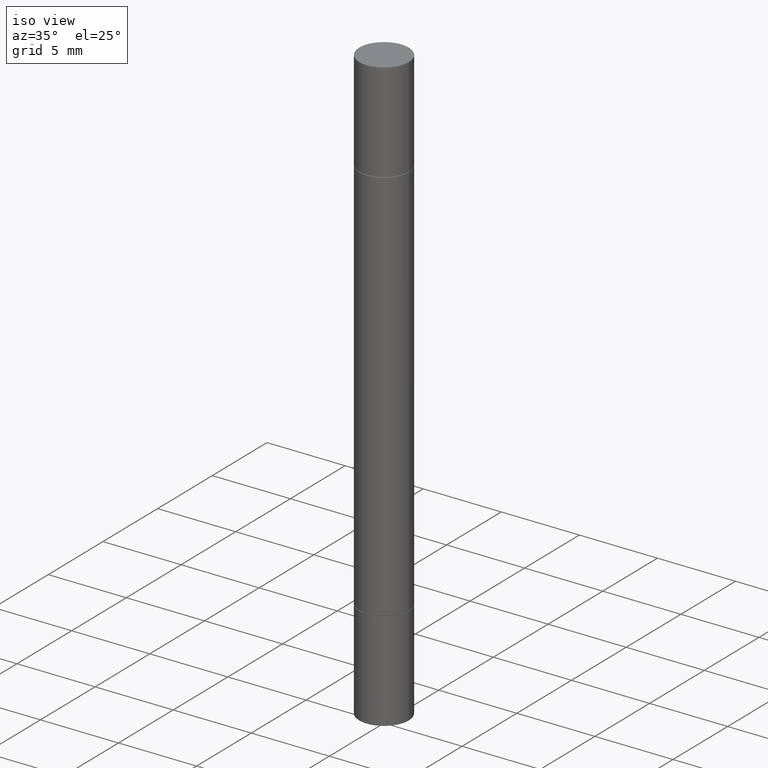
[diagram: clean part render]
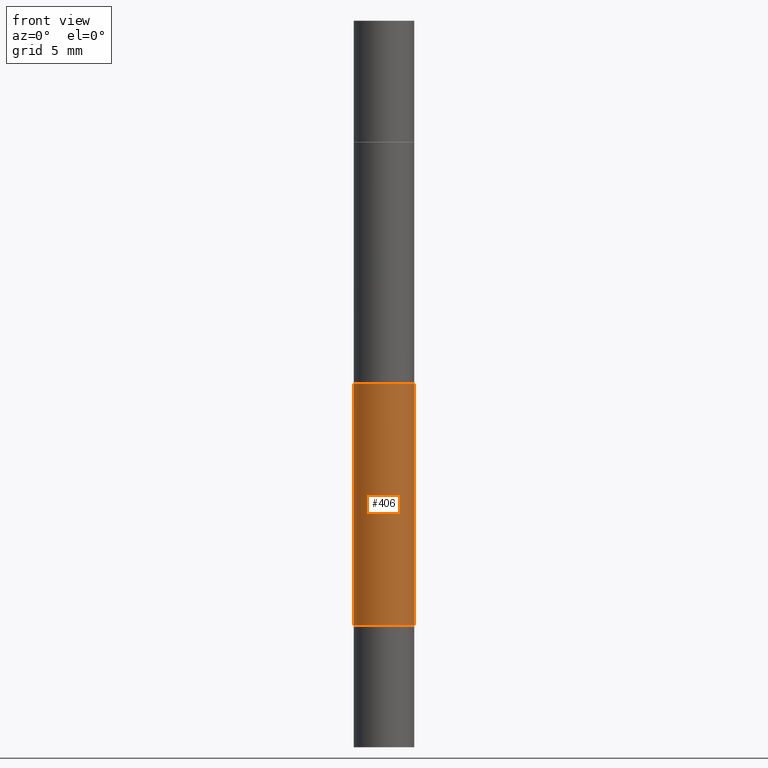
[diagram: tour spotlight — one face highlighted and labeled with its STEP entity id]
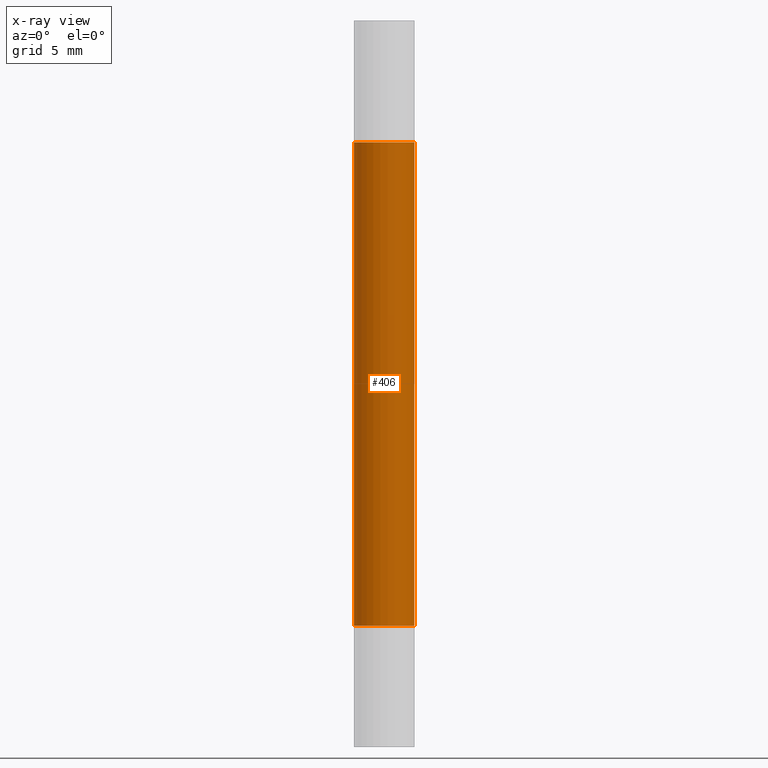
[diagram: x-ray of the same camera — body ghosted, this tour face saturated]
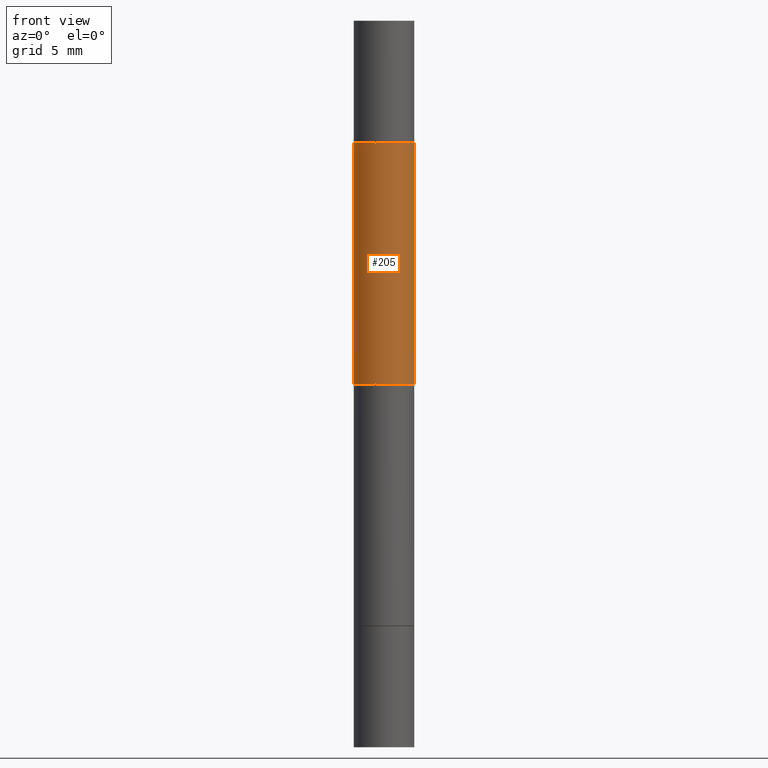
[diagram: tour spotlight — one face highlighted and labeled with its STEP entity id]
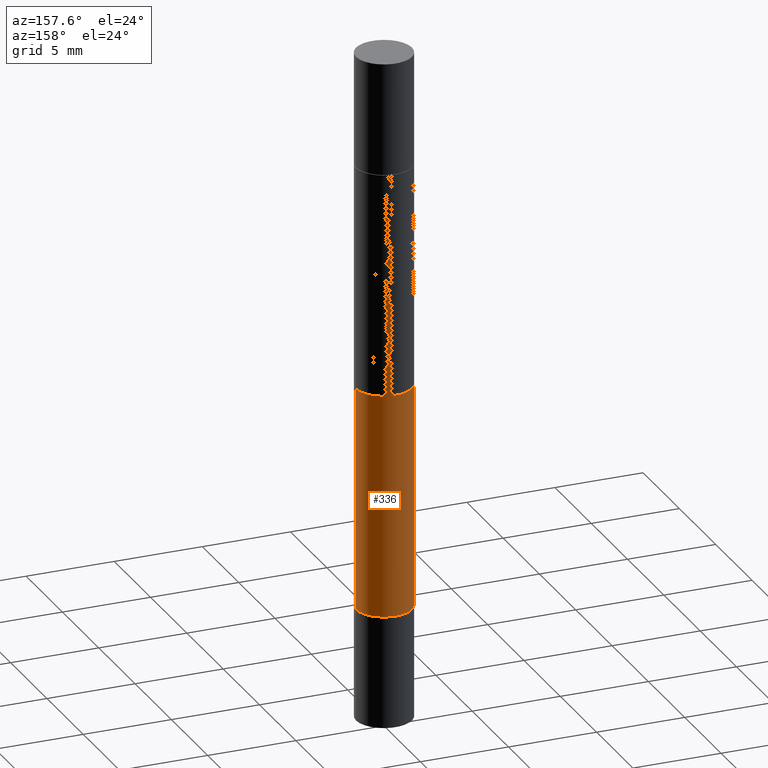
[diagram: tour spotlight — one face highlighted and labeled with its STEP entity id]
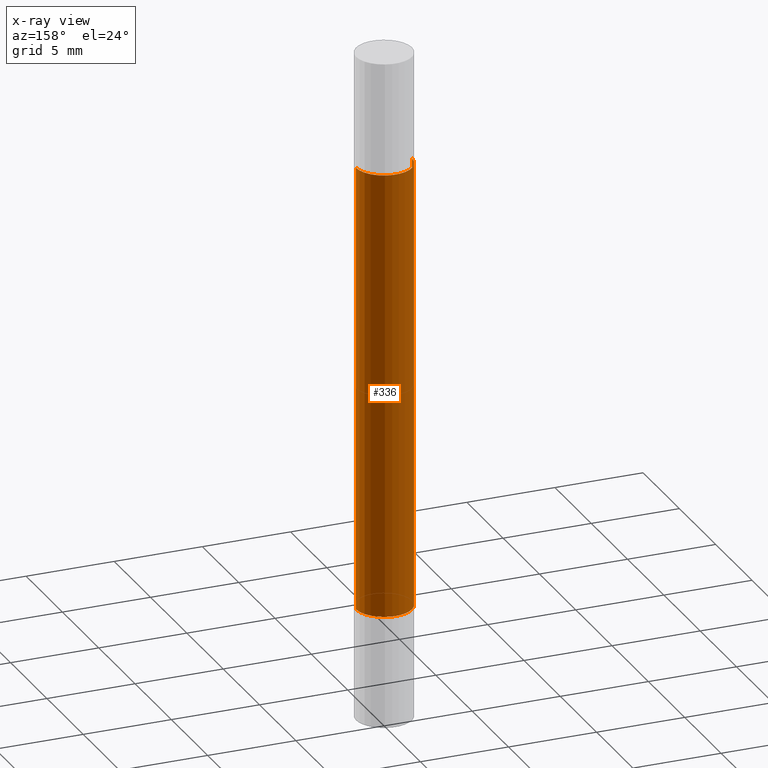
[diagram: x-ray of the same camera — body ghosted, this tour face saturated]
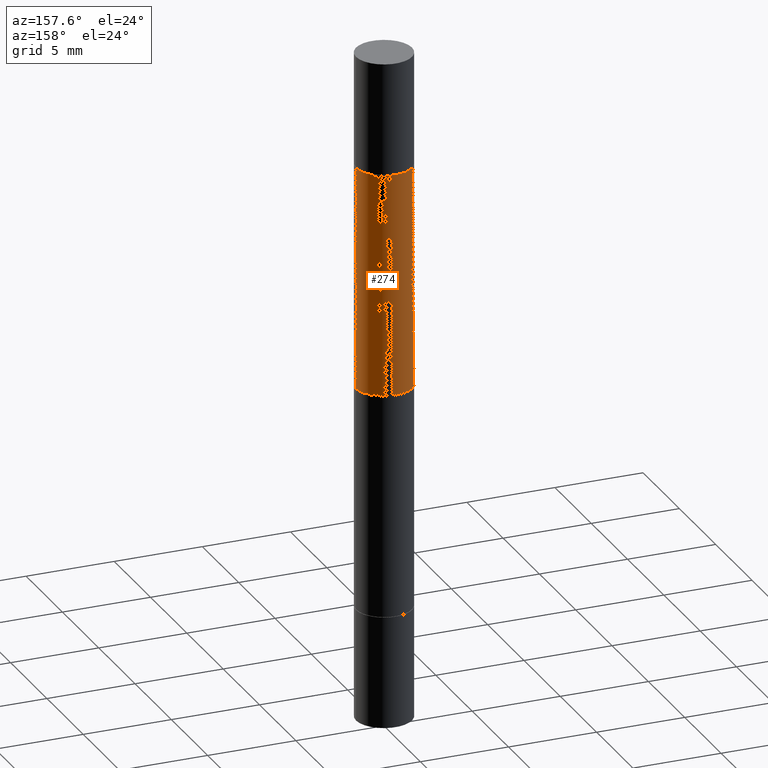
[diagram: tour spotlight — one face highlighted and labeled with its STEP entity id]
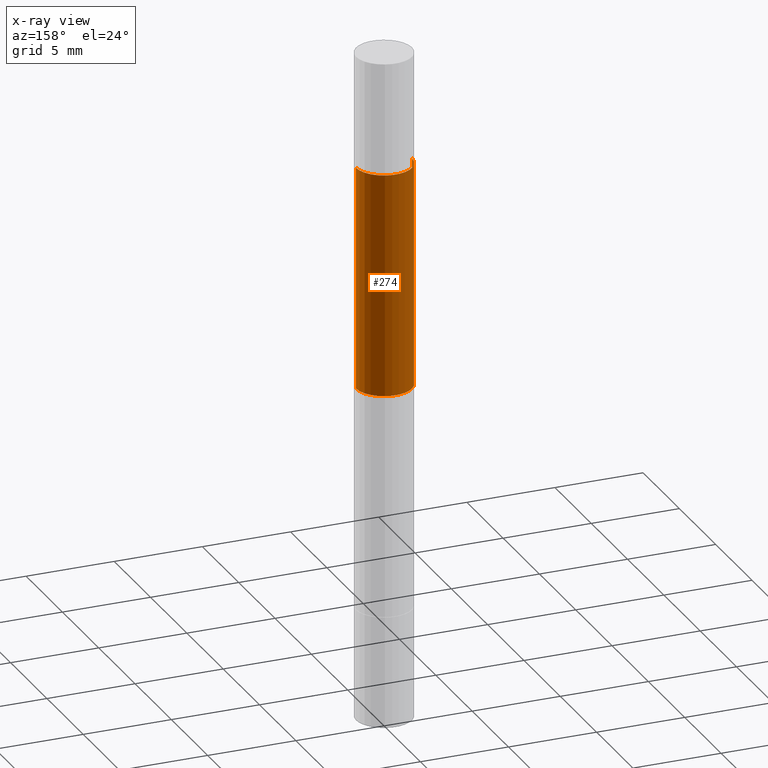
[diagram: x-ray of the same camera — body ghosted, this tour face saturated]
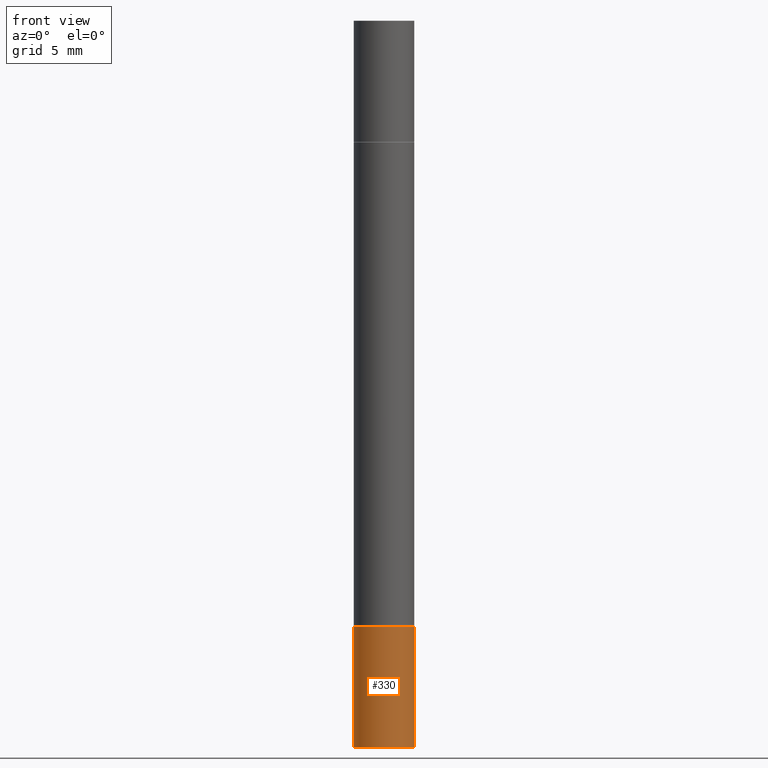
[diagram: tour spotlight — one face highlighted and labeled with its STEP entity id]
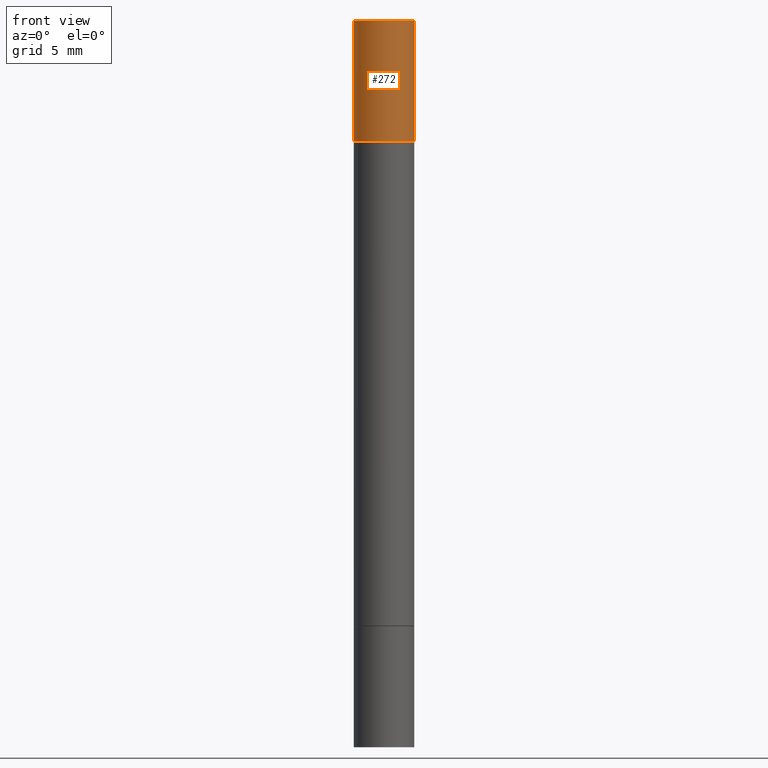
[diagram: tour spotlight — one face highlighted and labeled with its STEP entity id]
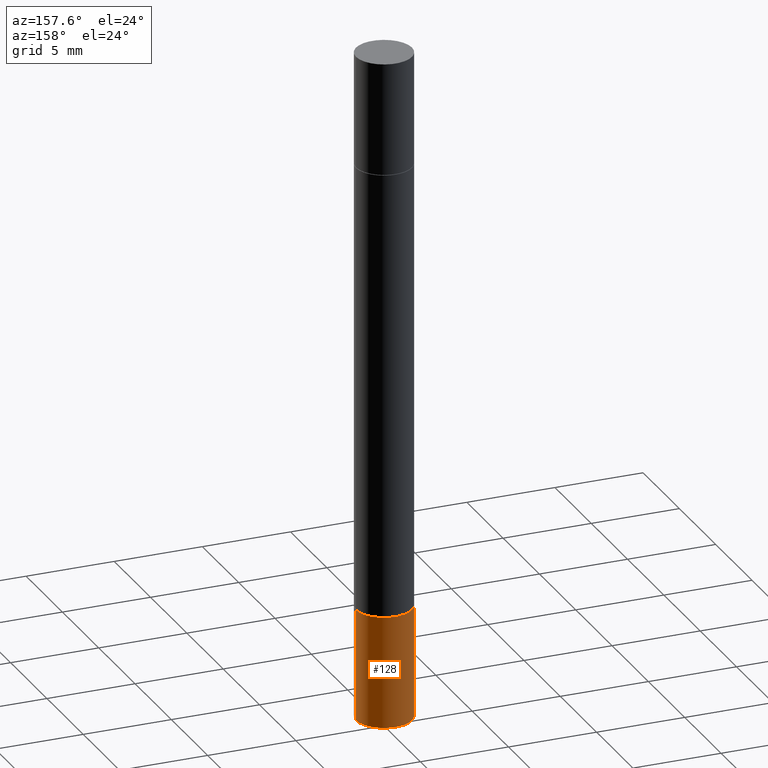
[diagram: tour spotlight — one face highlighted and labeled with its STEP entity id]
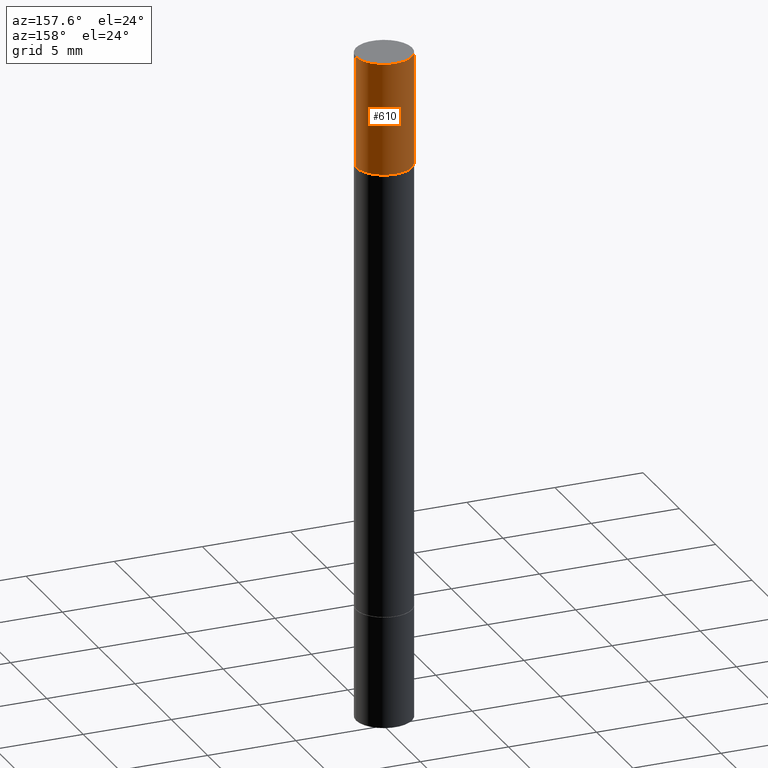
[diagram: tour spotlight — one face highlighted and labeled with its STEP entity id]
A machine part: a face-by-face anatomy tour. The part has 26 B-rep faces; the first image is the clean iso view, then the 8 largest visible faces are spotlighted one at a time (largest first), each with its STEP entity span.

Face 1 — front view, entity #406. An x-ray twin of the same camera follows (body ghosted, this face saturated) — the face is partly hidden behind the body. In plain terms, the highlighted cylindrical surface (edge-blend (fillet) strip) has radius 1.5875 mm, axis along (-0, -0, -1).
Definition (entity closure, byte-faithful):
#28 = VERTEX_POINT ( 'NONE', #626 ) ;
#52 = CARTESIAN_POINT ( 'NONE',  ( 0.06250000000000005551, -1.312093856123426167E-15, -0.2509999999999998899 ) ) ;
#67 = AXIS2_PLACEMENT_3D ( 'NONE', #307, #311, #574 ) ;
#69 = CARTESIAN_POINT ( 'NONE',  ( -0.06250000000000005551, -4.468775639073129860E-16, -0.2509999999999998899 ) ) ;
#70 = EDGE_LOOP ( 'NONE', ( #342, #423, #364, #247 ) ) ;
#105 = CIRCLE ( 'NONE', #67, 0.06250000000000005551 ) ;
#109 = EDGE_CURVE ( 'NONE', #136, #651, #401, .T. ) ;
#136 = VERTEX_POINT ( 'NONE', #52 ) ;
#144 = VECTOR ( 'NONE', #627, 39.37007874015748143 ) ;
#147 = CYLINDRICAL_SURFACE ( 'NONE', #524, 0.06249999999999996531 ) ;
#152 = DIRECTION ( 'NONE',  ( 1.000000000000000000, -6.982962677686264344E-15, 0.000000000000000000 ) ) ;
#184 = FACE_OUTER_BOUND ( 'NONE', #70, .T. ) ;
#219 = CARTESIAN_POINT ( 'NONE',  ( 0.06250000000000005551, -4.797295359570480345E-15, -1.248999999999999888 ) ) ;
#242 = DIRECTION ( 'NONE',  ( 1.000000000000000000, -6.982962677686266711E-15, 0.000000000000000000 ) ) ;
#247 = ORIENTED_EDGE ( 'NONE', *, *, #109, .F. ) ;
#261 = VERTEX_POINT ( 'NONE', #69 ) ;
#267 = AXIS2_PLACEMENT_3D ( 'NONE', #576, #415, #152 ) ;
#292 = CARTESIAN_POINT ( 'NONE',  ( 0.000000000000000000, -5.238278812796173300E-15, -1.499999999999999778 ) ) ;
#307 = CARTESIAN_POINT ( 'NONE',  ( 3.054390538925235704E-29, -4.360860192215088675E-15, -1.248999999999999888 ) ) ;
#311 = DIRECTION ( 'NONE',  ( -2.445468806185136597E-29, 3.491481338843145583E-15, 1.000000000000000000 ) ) ;
#315 = DIRECTION ( 'NONE',  ( -2.445468806185136877E-29, -3.492890411551753071E-15, -1.000000000000000000 ) ) ;
#340 = DIRECTION ( 'NONE',  ( -2.445468806185136597E-29, -3.492890411551752677E-15, -1.000000000000000000 ) ) ;
#342 = ORIENTED_EDGE ( 'NONE', *, *, #607, .F. ) ;
#364 = ORIENTED_EDGE ( 'NONE', *, *, #485, .T. ) ;
#401 = LINE ( 'NONE', #643, #448 ) ;
#406 = ADVANCED_FACE ( 'NONE', ( #184 ), #147, .T. ) ;
#410 = CARTESIAN_POINT ( 'NONE',  ( -0.06249999999999996531, -4.809497687935452578E-15, -1.499999999999999778 ) ) ;
#415 = DIRECTION ( 'NONE',  ( 2.445468806185136597E-29, 3.492890411551752677E-15, 1.000000000000000000 ) ) ;
#423 = ORIENTED_EDGE ( 'NONE', *, *, #602, .T. ) ;
#448 = VECTOR ( 'NONE', #315, 39.37007874015748143 ) ;
#474 = LINE ( 'NONE', #410, #144 ) ;
#485 = EDGE_CURVE ( 'NONE', #28, #651, #105, .T. ) ;
#524 = AXIS2_PLACEMENT_3D ( 'NONE', #292, #340, #242 ) ;
#574 = DIRECTION ( 'NONE',  ( 1.000000000000000000, -6.982962677686264344E-15, 0.000000000000000000 ) ) ;
#576 = CARTESIAN_POINT ( 'NONE',  ( 3.054390538925235704E-29, -8.756586887680336100E-16, -0.2509999999999998899 ) ) ;
#581 = CIRCLE ( 'NONE', #267, 0.06250000000000005551 ) ;
#602 = EDGE_CURVE ( 'NONE', #261, #28, #474, .T. ) ;
#607 = EDGE_CURVE ( 'NONE', #261, #136, #581, .T. ) ;
#626 = CARTESIAN_POINT ( 'NONE',  ( -0.06250000000000005551, -2.189829879271635210E-15, -1.248999999999999888 ) ) ;
#627 = DIRECTION ( 'NONE',  ( -2.445468806185136877E-29, -3.492890411551753071E-15, -1.000000000000000000 ) ) ;
#643 = CARTESIAN_POINT ( 'NONE',  ( 0.06249999999999996531, -5.674713980151564181E-15, -1.499999999999999778 ) ) ;
#651 = VERTEX_POINT ( 'NONE', #219 ) ;

Face 2 — front view, entity #205. In plain terms, the highlighted cylindrical surface (edge-blend (fillet) strip) has radius 1.5875 mm, axis along (-0, -0, -1).
Definition (entity closure, byte-faithful):
#25 = CIRCLE ( 'NONE', #552, 0.06249999999999996531 ) ;
#36 = LINE ( 'NONE', #82, #592 ) ;
#60 = CARTESIAN_POINT ( 'NONE',  ( 0.06250000000000005551, -1.312093856123426167E-15, -0.2509999999999998899 ) ) ;
#72 = EDGE_CURVE ( 'NONE', #578, #264, #25, .T. ) ;
#82 = CARTESIAN_POINT ( 'NONE',  ( -0.06249999999999996531, -4.809497687935452578E-15, -1.499999999999999778 ) ) ;
#117 = EDGE_CURVE ( 'NONE', #583, #561, #541, .T. ) ;
#122 = FACE_OUTER_BOUND ( 'NONE', #447, .T. ) ;
#145 = DIRECTION ( 'NONE',  ( 1.000000000000000000, -6.982962677686264344E-15, 0.000000000000000000 ) ) ;
#146 = EDGE_CURVE ( 'NONE', #561, #578, #517, .T. ) ;
#151 = DIRECTION ( 'NONE',  ( 2.445468806185136597E-29, 3.492890411551752677E-15, 1.000000000000000000 ) ) ;
#172 = CARTESIAN_POINT ( 'NONE',  ( -0.06249999999999996531, -1.318353721589475380E-15, -0.7499999999999998890 ) ) ;
#180 = ORIENTED_EDGE ( 'NONE', *, *, #380, .T. ) ;
#182 = AXIS2_PLACEMENT_3D ( 'NONE', #409, #151, #145 ) ;
#202 = AXIS2_PLACEMENT_3D ( 'NONE', #596, #229, #551 ) ;
#205 = ADVANCED_FACE ( 'NONE', ( #122 ), #593, .T. ) ;
#212 = VECTOR ( 'NONE', #465, 39.37007874015748143 ) ;
#229 = DIRECTION ( 'NONE',  ( -2.445468806185136597E-29, -3.492890411551752677E-15, -1.000000000000000000 ) ) ;
#253 = ORIENTED_EDGE ( 'NONE', *, *, #72, .F. ) ;
#255 = CARTESIAN_POINT ( 'NONE',  ( 0.06249999999999996531, -5.674713980151564181E-15, -1.499999999999999778 ) ) ;
#256 = CARTESIAN_POINT ( 'NONE',  ( -0.06250000000000005551, -4.468775639073129860E-16, -0.2509999999999998899 ) ) ;
#264 = VERTEX_POINT ( 'NONE', #172 ) ;
#270 = ORIENTED_EDGE ( 'NONE', *, *, #146, .F. ) ;
#334 = ORIENTED_EDGE ( 'NONE', *, *, #117, .F. ) ;
#380 = EDGE_CURVE ( 'NONE', #583, #264, #36, .T. ) ;
#408 = DIRECTION ( 'NONE',  ( -2.445468806185136877E-29, -3.492890411551753071E-15, -1.000000000000000000 ) ) ;
#409 = CARTESIAN_POINT ( 'NONE',  ( 3.054390538925235704E-29, -8.756586887680336100E-16, -0.2509999999999998899 ) ) ;
#447 = EDGE_LOOP ( 'NONE', ( #334, #180, #253, #270 ) ) ;
#465 = DIRECTION ( 'NONE',  ( -2.445468806185136877E-29, -3.492890411551753071E-15, -1.000000000000000000 ) ) ;
#517 = LINE ( 'NONE', #255, #212 ) ;
#541 = CIRCLE ( 'NONE', #182, 0.06250000000000005551 ) ;
#551 = DIRECTION ( 'NONE',  ( 1.000000000000000000, -6.982962677686266711E-15, 0.000000000000000000 ) ) ;
#552 = AXIS2_PLACEMENT_3D ( 'NONE', #677, #617, #673 ) ;
#561 = VERTEX_POINT ( 'NONE', #60 ) ;
#578 = VERTEX_POINT ( 'NONE', #637 ) ;
#583 = VERTEX_POINT ( 'NONE', #256 ) ;
#592 = VECTOR ( 'NONE', #408, 39.37007874015748143 ) ;
#593 = CYLINDRICAL_SURFACE ( 'NONE', #202, 0.06249999999999996531 ) ;
#596 = CARTESIAN_POINT ( 'NONE',  ( 0.000000000000000000, -5.238278812796173300E-15, -1.499999999999999778 ) ) ;
#617 = DIRECTION ( 'NONE',  ( -0.000000000000000000, -3.492185875197449130E-15, -1.000000000000000000 ) ) ;
#637 = CARTESIAN_POINT ( 'NONE',  ( 0.06249999999999996531, -2.183570013805587378E-15, -0.7499999999999998890 ) ) ;
#673 = DIRECTION ( 'NONE',  ( 0.000000000000000000, 1.000000000000000000, -4.370956789862823516E-15 ) ) ;
#677 = CARTESIAN_POINT ( 'NONE',  ( 1.834101604638852167E-29, -2.618611004132358694E-15, -0.7499999999999998890 ) ) ;

Face 3 — auxiliary view, entity #336. An x-ray twin of the same camera follows (body ghosted, this face saturated) — the face is partly hidden behind the body. In plain terms, the highlighted cylindrical surface (edge-blend (fillet) strip) has radius 1.5875 mm, axis along (-0, -0, -1).
Definition (entity closure, byte-faithful):
#28 = VERTEX_POINT ( 'NONE', #626 ) ;
#50 = AXIS2_PLACEMENT_3D ( 'NONE', #295, #611, #246 ) ;
#52 = CARTESIAN_POINT ( 'NONE',  ( 0.06250000000000005551, -1.312093856123426167E-15, -0.2509999999999998899 ) ) ;
#69 = CARTESIAN_POINT ( 'NONE',  ( -0.06250000000000005551, -4.468775639073129860E-16, -0.2509999999999998899 ) ) ;
#74 = ORIENTED_EDGE ( 'NONE', *, *, #368, .F. ) ;
#100 = DIRECTION ( 'NONE',  ( -2.445468806185136597E-29, 3.491481338843145583E-15, 1.000000000000000000 ) ) ;
#109 = EDGE_CURVE ( 'NONE', #136, #651, #401, .T. ) ;
#133 = EDGE_CURVE ( 'NONE', #651, #28, #501, .T. ) ;
#136 = VERTEX_POINT ( 'NONE', #52 ) ;
#144 = VECTOR ( 'NONE', #627, 39.37007874015748143 ) ;
#163 = DIRECTION ( 'NONE',  ( 1.000000000000000000, -6.982962677686264344E-15, 0.000000000000000000 ) ) ;
#189 = ORIENTED_EDGE ( 'NONE', *, *, #109, .T. ) ;
#219 = CARTESIAN_POINT ( 'NONE',  ( 0.06250000000000005551, -4.797295359570480345E-15, -1.248999999999999888 ) ) ;
#240 = AXIS2_PLACEMENT_3D ( 'NONE', #299, #100, #163 ) ;
#246 = DIRECTION ( 'NONE',  ( 1.000000000000000000, -6.982962677686264344E-15, 0.000000000000000000 ) ) ;
#261 = VERTEX_POINT ( 'NONE', #69 ) ;
#284 = CARTESIAN_POINT ( 'NONE',  ( 0.000000000000000000, -5.238278812796173300E-15, -1.499999999999999778 ) ) ;
#295 = CARTESIAN_POINT ( 'NONE',  ( 3.054390538925235704E-29, -8.756586887680336100E-16, -0.2509999999999998899 ) ) ;
#299 = CARTESIAN_POINT ( 'NONE',  ( 3.054390538925235704E-29, -4.360860192215088675E-15, -1.248999999999999888 ) ) ;
#315 = DIRECTION ( 'NONE',  ( -2.445468806185136877E-29, -3.492890411551753071E-15, -1.000000000000000000 ) ) ;
#316 = ORIENTED_EDGE ( 'NONE', *, *, #602, .F. ) ;
#322 = CIRCLE ( 'NONE', #50, 0.06250000000000005551 ) ;
#323 = AXIS2_PLACEMENT_3D ( 'NONE', #284, #451, #445 ) ;
#336 = ADVANCED_FACE ( 'NONE', ( #675 ), #353, .T. ) ;
#353 = CYLINDRICAL_SURFACE ( 'NONE', #323, 0.06249999999999996531 ) ;
#361 = EDGE_LOOP ( 'NONE', ( #316, #74, #189, #648 ) ) ;
#368 = EDGE_CURVE ( 'NONE', #136, #261, #322, .T. ) ;
#401 = LINE ( 'NONE', #643, #448 ) ;
#410 = CARTESIAN_POINT ( 'NONE',  ( -0.06249999999999996531, -4.809497687935452578E-15, -1.499999999999999778 ) ) ;
#445 = DIRECTION ( 'NONE',  ( 1.000000000000000000, -6.982962677686266711E-15, 0.000000000000000000 ) ) ;
#448 = VECTOR ( 'NONE', #315, 39.37007874015748143 ) ;
#451 = DIRECTION ( 'NONE',  ( -2.445468806185136597E-29, -3.492890411551752677E-15, -1.000000000000000000 ) ) ;
#474 = LINE ( 'NONE', #410, #144 ) ;
#501 = CIRCLE ( 'NONE', #240, 0.06250000000000005551 ) ;
#602 = EDGE_CURVE ( 'NONE', #261, #28, #474, .T. ) ;
#611 = DIRECTION ( 'NONE',  ( 2.445468806185136597E-29, 3.492890411551752677E-15, 1.000000000000000000 ) ) ;
#626 = CARTESIAN_POINT ( 'NONE',  ( -0.06250000000000005551, -2.189829879271635210E-15, -1.248999999999999888 ) ) ;
#627 = DIRECTION ( 'NONE',  ( -2.445468806185136877E-29, -3.492890411551753071E-15, -1.000000000000000000 ) ) ;
#643 = CARTESIAN_POINT ( 'NONE',  ( 0.06249999999999996531, -5.674713980151564181E-15, -1.499999999999999778 ) ) ;
#648 = ORIENTED_EDGE ( 'NONE', *, *, #133, .T. ) ;
#651 = VERTEX_POINT ( 'NONE', #219 ) ;
#675 = FACE_OUTER_BOUND ( 'NONE', #361, .T. ) ;

Face 4 — auxiliary view, entity #274. An x-ray twin of the same camera follows (body ghosted, this face saturated) — the face is partly hidden behind the body. In plain terms, the highlighted cylindrical surface (edge-blend (fillet) strip) has radius 1.5875 mm, axis along (-0, -0, -1).
Definition (entity closure, byte-faithful):
#3 = CARTESIAN_POINT ( 'NONE',  ( 3.054390538925235704E-29, -8.756586887680336100E-16, -0.2509999999999998899 ) ) ;
#30 = DIRECTION ( 'NONE',  ( -2.445468806185136597E-29, -3.492890411551752677E-15, -1.000000000000000000 ) ) ;
#36 = LINE ( 'NONE', #82, #592 ) ;
#60 = CARTESIAN_POINT ( 'NONE',  ( 0.06250000000000005551, -1.312093856123426167E-15, -0.2509999999999998899 ) ) ;
#80 = CYLINDRICAL_SURFACE ( 'NONE', #120, 0.06249999999999996531 ) ;
#82 = CARTESIAN_POINT ( 'NONE',  ( -0.06249999999999996531, -4.809497687935452578E-15, -1.499999999999999778 ) ) ;
#111 = ORIENTED_EDGE ( 'NONE', *, *, #146, .T. ) ;
#120 = AXIS2_PLACEMENT_3D ( 'NONE', #494, #30, #546 ) ;
#146 = EDGE_CURVE ( 'NONE', #561, #578, #517, .T. ) ;
#168 = EDGE_CURVE ( 'NONE', #561, #583, #391, .T. ) ;
#172 = CARTESIAN_POINT ( 'NONE',  ( -0.06249999999999996531, -1.318353721589475380E-15, -0.7499999999999998890 ) ) ;
#177 = ORIENTED_EDGE ( 'NONE', *, *, #380, .F. ) ;
#200 = DIRECTION ( 'NONE',  ( 2.445468806185136597E-29, 3.492890411551752677E-15, 1.000000000000000000 ) ) ;
#212 = VECTOR ( 'NONE', #465, 39.37007874015748143 ) ;
#218 = ORIENTED_EDGE ( 'NONE', *, *, #328, .F. ) ;
#222 = FACE_OUTER_BOUND ( 'NONE', #670, .T. ) ;
#255 = CARTESIAN_POINT ( 'NONE',  ( 0.06249999999999996531, -5.674713980151564181E-15, -1.499999999999999778 ) ) ;
#256 = CARTESIAN_POINT ( 'NONE',  ( -0.06250000000000005551, -4.468775639073129860E-16, -0.2509999999999998899 ) ) ;
#264 = VERTEX_POINT ( 'NONE', #172 ) ;
#274 = ADVANCED_FACE ( 'NONE', ( #222 ), #80, .T. ) ;
#291 = AXIS2_PLACEMENT_3D ( 'NONE', #615, #458, #564 ) ;
#328 = EDGE_CURVE ( 'NONE', #264, #578, #618, .T. ) ;
#380 = EDGE_CURVE ( 'NONE', #583, #264, #36, .T. ) ;
#391 = CIRCLE ( 'NONE', #571, 0.06250000000000005551 ) ;
#408 = DIRECTION ( 'NONE',  ( -2.445468806185136877E-29, -3.492890411551753071E-15, -1.000000000000000000 ) ) ;
#412 = DIRECTION ( 'NONE',  ( 1.000000000000000000, -6.982962677686264344E-15, 0.000000000000000000 ) ) ;
#436 = ORIENTED_EDGE ( 'NONE', *, *, #168, .F. ) ;
#458 = DIRECTION ( 'NONE',  ( -0.000000000000000000, -3.492185875197449130E-15, -1.000000000000000000 ) ) ;
#465 = DIRECTION ( 'NONE',  ( -2.445468806185136877E-29, -3.492890411551753071E-15, -1.000000000000000000 ) ) ;
#494 = CARTESIAN_POINT ( 'NONE',  ( 0.000000000000000000, -5.238278812796173300E-15, -1.499999999999999778 ) ) ;
#517 = LINE ( 'NONE', #255, #212 ) ;
#546 = DIRECTION ( 'NONE',  ( 1.000000000000000000, -6.982962677686266711E-15, 0.000000000000000000 ) ) ;
#561 = VERTEX_POINT ( 'NONE', #60 ) ;
#564 = DIRECTION ( 'NONE',  ( 0.000000000000000000, 1.000000000000000000, -4.370956789862823516E-15 ) ) ;
#571 = AXIS2_PLACEMENT_3D ( 'NONE', #3, #200, #412 ) ;
#578 = VERTEX_POINT ( 'NONE', #637 ) ;
#583 = VERTEX_POINT ( 'NONE', #256 ) ;
#592 = VECTOR ( 'NONE', #408, 39.37007874015748143 ) ;
#615 = CARTESIAN_POINT ( 'NONE',  ( 1.834101604638852167E-29, -2.618611004132358694E-15, -0.7499999999999998890 ) ) ;
#618 = CIRCLE ( 'NONE', #291, 0.06249999999999996531 ) ;
#637 = CARTESIAN_POINT ( 'NONE',  ( 0.06249999999999996531, -2.183570013805587378E-15, -0.7499999999999998890 ) ) ;
#670 = EDGE_LOOP ( 'NONE', ( #177, #436, #111, #218 ) ) ;

Face 5 — front view, entity #330. In plain terms, the highlighted cylindrical surface (edge-blend (fillet) strip) has radius 1.5875 mm, axis along (-0, 0, 1).
Definition (entity closure, byte-faithful):
#21 = CARTESIAN_POINT ( 'NONE',  ( 3.668203209277704895E-29, -5.237222008264718177E-15, -1.500000000000000222 ) ) ;
#29 = CARTESIAN_POINT ( 'NONE',  ( -0.06250000000000001388, 4.440892098500627148E-16, -3.074334431409317165E-30 ) ) ;
#31 = ORIENTED_EDGE ( 'NONE', *, *, #228, .T. ) ;
#33 = CARTESIAN_POINT ( 'NONE',  ( 0.000000000000000000, 0.000000000000000000, 0.000000000000000000 ) ) ;
#58 = CARTESIAN_POINT ( 'NONE',  ( 0.06250000000000001388, -4.364351673553918173E-16, 3.047610484872460571E-30 ) ) ;
#89 = AXIS2_PLACEMENT_3D ( 'NONE', #21, #542, #127 ) ;
#103 = LINE ( 'NONE', #58, #449 ) ;
#108 = DIRECTION ( 'NONE',  ( -2.445468806185136877E-29, 3.491481338843145188E-15, 1.000000000000000000 ) ) ;
#115 = DIRECTION ( 'NONE',  ( -2.445468806185136877E-29, 3.491481338843145188E-15, 1.000000000000000000 ) ) ;
#119 = CIRCLE ( 'NONE', #379, 0.06250000000000001388 ) ;
#123 = ORIENTED_EDGE ( 'NONE', *, *, #206, .F. ) ;
#127 = DIRECTION ( 'NONE',  ( 1.000000000000000000, -6.982962677686261189E-15, 0.000000000000000000 ) ) ;
#132 = CARTESIAN_POINT ( 'NONE',  ( 3.056836007731421306E-29, -4.364351673553932471E-15, -1.250000000000000000 ) ) ;
#164 = VERTEX_POINT ( 'NONE', #263 ) ;
#201 = CARTESIAN_POINT ( 'NONE',  ( 0.06250000000000001388, -4.800786840909324141E-15, -1.250000000000000000 ) ) ;
#206 = EDGE_CURVE ( 'NONE', #398, #534, #119, .T. ) ;
#220 = DIRECTION ( 'NONE',  ( -2.445468806185136597E-29, 3.491481338843145583E-15, 1.000000000000000000 ) ) ;
#228 = EDGE_CURVE ( 'NONE', #164, #502, #580, .T. ) ;
#263 = CARTESIAN_POINT ( 'NONE',  ( -0.06250000000000001388, -4.356697631059263102E-15, -1.500000000000000222 ) ) ;
#266 = EDGE_LOOP ( 'NONE', ( #565, #31, #496, #123 ) ) ;
#317 = LINE ( 'NONE', #29, #525 ) ;
#329 = DIRECTION ( 'NONE',  ( 1.000000000000000000, -6.982962677686269077E-15, 0.000000000000000000 ) ) ;
#330 = ADVANCED_FACE ( 'NONE', ( #405 ), #560, .T. ) ;
#350 = DIRECTION ( 'NONE',  ( -2.445468806185136597E-29, 3.491481338843145583E-15, 1.000000000000000000 ) ) ;
#362 = CARTESIAN_POINT ( 'NONE',  ( 0.06250000000000001388, -5.673657175620109846E-15, -1.500000000000000222 ) ) ;
#379 = AXIS2_PLACEMENT_3D ( 'NONE', #132, #220, #329 ) ;
#398 = VERTEX_POINT ( 'NONE', #509 ) ;
#405 = FACE_OUTER_BOUND ( 'NONE', #266, .T. ) ;
#449 = VECTOR ( 'NONE', #108, 39.37007874015748143 ) ;
#496 = ORIENTED_EDGE ( 'NONE', *, *, #567, .T. ) ;
#500 = DIRECTION ( 'NONE',  ( 1.000000000000000000, -6.982962677686267499E-15, 4.876176775795935793E-29 ) ) ;
#502 = VERTEX_POINT ( 'NONE', #362 ) ;
#509 = CARTESIAN_POINT ( 'NONE',  ( -0.06250000000000001388, -4.356697631059263102E-15, -1.250000000000000000 ) ) ;
#525 = VECTOR ( 'NONE', #115, 39.37007874015748143 ) ;
#534 = VERTEX_POINT ( 'NONE', #201 ) ;
#542 = DIRECTION ( 'NONE',  ( -2.445468806185136597E-29, 3.491481338843145583E-15, 1.000000000000000000 ) ) ;
#560 = CYLINDRICAL_SURFACE ( 'NONE', #632, 0.06250000000000001388 ) ;
#565 = ORIENTED_EDGE ( 'NONE', *, *, #624, .F. ) ;
#567 = EDGE_CURVE ( 'NONE', #502, #534, #103, .T. ) ;
#580 = CIRCLE ( 'NONE', #89, 0.06250000000000001388 ) ;
#624 = EDGE_CURVE ( 'NONE', #164, #398, #317, .T. ) ;
#632 = AXIS2_PLACEMENT_3D ( 'NONE', #33, #350, #500 ) ;

Face 6 — front view, entity #272. In plain terms, the highlighted cylindrical surface (edge-blend (fillet) strip) has radius 1.5875 mm, axis along (-0, -0, -1).
Definition (entity closure, byte-faithful):
#11 = DIRECTION ( 'NONE',  ( 2.445468806185136597E-29, 3.492890411551752677E-15, 1.000000000000000000 ) ) ;
#14 = CARTESIAN_POINT ( 'NONE',  ( -0.06250000000000001388, -6.773372051792008208E-18, 2.731847993664278996E-16 ) ) ;
#26 = AXIS2_PLACEMENT_3D ( 'NONE', #257, #11, #102 ) ;
#37 = CIRCLE ( 'NONE', #655, 0.06250000000000001388 ) ;
#43 = ORIENTED_EDGE ( 'NONE', *, *, #483, .F. ) ;
#49 = ORIENTED_EDGE ( 'NONE', *, *, #614, .F. ) ;
#57 = VECTOR ( 'NONE', #174, 39.37007874015748143 ) ;
#101 = AXIS2_PLACEMENT_3D ( 'NONE', #179, #650, #599 ) ;
#102 = DIRECTION ( 'NONE',  ( 1.000000000000000000, -6.982962677686267499E-15, 0.000000000000000000 ) ) ;
#138 = CARTESIAN_POINT ( 'NONE',  ( 3.056836007731421306E-29, -8.721657983564820597E-16, -0.2499999999999998057 ) ) ;
#166 = LINE ( 'NONE', #556, #195 ) ;
#173 = VERTEX_POINT ( 'NONE', #510 ) ;
#174 = DIRECTION ( 'NONE',  ( -2.445468806185136877E-29, -3.492890411551753071E-15, -1.000000000000000000 ) ) ;
#179 = CARTESIAN_POINT ( 'NONE',  ( 0.000000000000000000, -5.238278812796173300E-15, -1.499999999999999778 ) ) ;
#195 = VECTOR ( 'NONE', #265, 39.37007874015748143 ) ;
#225 = CIRCLE ( 'NONE', #26, 0.06250000000000001388 ) ;
#232 = CARTESIAN_POINT ( 'NONE',  ( 0.06250000000000001388, -5.674713980151564181E-15, -1.499999999999999778 ) ) ;
#257 = CARTESIAN_POINT ( 'NONE',  ( 3.668203209277704895E-29, 1.056804531456312920E-18, 2.731847993664263218E-16 ) ) ;
#265 = DIRECTION ( 'NONE',  ( -2.445468806185136877E-29, -3.492890411551753071E-15, -1.000000000000000000 ) ) ;
#272 = ADVANCED_FACE ( 'NONE', ( #338 ), #482, .T. ) ;
#286 = EDGE_CURVE ( 'NONE', #293, #173, #166, .T. ) ;
#293 = VERTEX_POINT ( 'NONE', #14 ) ;
#297 = DIRECTION ( 'NONE',  ( 1.000000000000000000, -6.982962677686269077E-15, 0.000000000000000000 ) ) ;
#338 = FACE_OUTER_BOUND ( 'NONE', #605, .T. ) ;
#357 = CARTESIAN_POINT ( 'NONE',  ( 0.06250000000000001388, -1.308600965711874025E-15, -0.2499999999999998057 ) ) ;
#393 = DIRECTION ( 'NONE',  ( 2.445468806185136597E-29, 3.492890411551752677E-15, 1.000000000000000000 ) ) ;
#411 = EDGE_CURVE ( 'NONE', #173, #488, #37, .T. ) ;
#426 = LINE ( 'NONE', #232, #57 ) ;
#482 = CYLINDRICAL_SURFACE ( 'NONE', #101, 0.06250000000000001388 ) ;
#483 = EDGE_CURVE ( 'NONE', #293, #547, #225, .T. ) ;
#488 = VERTEX_POINT ( 'NONE', #357 ) ;
#510 = CARTESIAN_POINT ( 'NONE',  ( -0.06250000000000001388, -6.773372051792008208E-18, -0.2499999999999998057 ) ) ;
#527 = ORIENTED_EDGE ( 'NONE', *, *, #286, .T. ) ;
#547 = VERTEX_POINT ( 'NONE', #638 ) ;
#556 = CARTESIAN_POINT ( 'NONE',  ( -0.06250000000000001388, -4.809497687935452578E-15, -1.499999999999999778 ) ) ;
#599 = DIRECTION ( 'NONE',  ( 1.000000000000000000, -6.982962677686261189E-15, 0.000000000000000000 ) ) ;
#600 = ORIENTED_EDGE ( 'NONE', *, *, #411, .T. ) ;
#605 = EDGE_LOOP ( 'NONE', ( #43, #527, #600, #49 ) ) ;
#614 = EDGE_CURVE ( 'NONE', #547, #488, #426, .T. ) ;
#638 = CARTESIAN_POINT ( 'NONE',  ( 0.06250000000000001388, -4.353783628239354613E-16, 2.731847993664263218E-16 ) ) ;
#650 = DIRECTION ( 'NONE',  ( -2.445468806185136597E-29, -3.492890411551752677E-15, -1.000000000000000000 ) ) ;
#655 = AXIS2_PLACEMENT_3D ( 'NONE', #138, #393, #297 ) ;

Face 7 — auxiliary view, entity #128. In plain terms, the highlighted cylindrical surface (edge-blend (fillet) strip) has radius 1.5875 mm, axis along (-0, 0, 1).
Definition (entity closure, byte-faithful):
#29 = CARTESIAN_POINT ( 'NONE',  ( -0.06250000000000001388, 4.440892098500627148E-16, -3.074334431409317165E-30 ) ) ;
#47 = DIRECTION ( 'NONE',  ( 1.000000000000000000, -6.982962677686269077E-15, 0.000000000000000000 ) ) ;
#58 = CARTESIAN_POINT ( 'NONE',  ( 0.06250000000000001388, -4.364351673553918173E-16, 3.047610484872460571E-30 ) ) ;
#94 = DIRECTION ( 'NONE',  ( 1.000000000000000000, -6.982962677686267499E-15, 4.876176775795935793E-29 ) ) ;
#103 = LINE ( 'NONE', #58, #449 ) ;
#108 = DIRECTION ( 'NONE',  ( -2.445468806185136877E-29, 3.491481338843145188E-15, 1.000000000000000000 ) ) ;
#115 = DIRECTION ( 'NONE',  ( -2.445468806185136877E-29, 3.491481338843145188E-15, 1.000000000000000000 ) ) ;
#128 = ADVANCED_FACE ( 'NONE', ( #570 ), #352, .T. ) ;
#129 = ORIENTED_EDGE ( 'NONE', *, *, #413, .F. ) ;
#143 = AXIS2_PLACEMENT_3D ( 'NONE', #194, #620, #197 ) ;
#164 = VERTEX_POINT ( 'NONE', #263 ) ;
#194 = CARTESIAN_POINT ( 'NONE',  ( 3.668203209277704895E-29, -5.237222008264718177E-15, -1.500000000000000222 ) ) ;
#197 = DIRECTION ( 'NONE',  ( 1.000000000000000000, -6.982962677686261189E-15, 0.000000000000000000 ) ) ;
#201 = CARTESIAN_POINT ( 'NONE',  ( 0.06250000000000001388, -4.800786840909324141E-15, -1.250000000000000000 ) ) ;
#214 = ORIENTED_EDGE ( 'NONE', *, *, #624, .T. ) ;
#231 = ORIENTED_EDGE ( 'NONE', *, *, #567, .F. ) ;
#250 = EDGE_LOOP ( 'NONE', ( #373, #214, #129, #231 ) ) ;
#263 = CARTESIAN_POINT ( 'NONE',  ( -0.06250000000000001388, -4.356697631059263102E-15, -1.500000000000000222 ) ) ;
#317 = LINE ( 'NONE', #29, #525 ) ;
#344 = DIRECTION ( 'NONE',  ( -2.445468806185136597E-29, 3.491481338843145583E-15, 1.000000000000000000 ) ) ;
#348 = CIRCLE ( 'NONE', #434, 0.06250000000000001388 ) ;
#352 = CYLINDRICAL_SURFACE ( 'NONE', #540, 0.06250000000000001388 ) ;
#362 = CARTESIAN_POINT ( 'NONE',  ( 0.06250000000000001388, -5.673657175620109846E-15, -1.500000000000000222 ) ) ;
#373 = ORIENTED_EDGE ( 'NONE', *, *, #469, .T. ) ;
#398 = VERTEX_POINT ( 'NONE', #509 ) ;
#413 = EDGE_CURVE ( 'NONE', #534, #398, #348, .T. ) ;
#434 = AXIS2_PLACEMENT_3D ( 'NONE', #511, #344, #47 ) ;
#449 = VECTOR ( 'NONE', #108, 39.37007874015748143 ) ;
#469 = EDGE_CURVE ( 'NONE', #502, #164, #666, .T. ) ;
#502 = VERTEX_POINT ( 'NONE', #362 ) ;
#509 = CARTESIAN_POINT ( 'NONE',  ( -0.06250000000000001388, -4.356697631059263102E-15, -1.250000000000000000 ) ) ;
#511 = CARTESIAN_POINT ( 'NONE',  ( 3.056836007731421306E-29, -4.364351673553932471E-15, -1.250000000000000000 ) ) ;
#525 = VECTOR ( 'NONE', #115, 39.37007874015748143 ) ;
#534 = VERTEX_POINT ( 'NONE', #201 ) ;
#540 = AXIS2_PLACEMENT_3D ( 'NONE', #629, #622, #94 ) ;
#567 = EDGE_CURVE ( 'NONE', #502, #534, #103, .T. ) ;
#570 = FACE_OUTER_BOUND ( 'NONE', #250, .T. ) ;
#620 = DIRECTION ( 'NONE',  ( -2.445468806185136597E-29, 3.491481338843145583E-15, 1.000000000000000000 ) ) ;
#622 = DIRECTION ( 'NONE',  ( -2.445468806185136597E-29, 3.491481338843145583E-15, 1.000000000000000000 ) ) ;
#624 = EDGE_CURVE ( 'NONE', #164, #398, #317, .T. ) ;
#629 = CARTESIAN_POINT ( 'NONE',  ( 0.000000000000000000, 0.000000000000000000, 0.000000000000000000 ) ) ;
#666 = CIRCLE ( 'NONE', #143, 0.06250000000000001388 ) ;

Face 8 — auxiliary view, entity #610. In plain terms, the highlighted cylindrical surface (edge-blend (fillet) strip) has radius 1.5875 mm, axis along (-0, -0, -1).
Definition (entity closure, byte-faithful):
#12 = DIRECTION ( 'NONE',  ( 2.445468806185136597E-29, 3.492890411551752677E-15, 1.000000000000000000 ) ) ;
#14 = CARTESIAN_POINT ( 'NONE',  ( -0.06250000000000001388, -6.773372051792008208E-18, 2.731847993664278996E-16 ) ) ;
#20 = DIRECTION ( 'NONE',  ( -2.445468806185136597E-29, -3.492890411551752677E-15, -1.000000000000000000 ) ) ;
#57 = VECTOR ( 'NONE', #174, 39.37007874015748143 ) ;
#90 = ORIENTED_EDGE ( 'NONE', *, *, #614, .T. ) ;
#110 = CARTESIAN_POINT ( 'NONE',  ( 3.056836007731421306E-29, -8.721657983564820597E-16, -0.2499999999999998057 ) ) ;
#139 = ORIENTED_EDGE ( 'NONE', *, *, #286, .F. ) ;
#166 = LINE ( 'NONE', #556, #195 ) ;
#173 = VERTEX_POINT ( 'NONE', #510 ) ;
#174 = DIRECTION ( 'NONE',  ( -2.445468806185136877E-29, -3.492890411551753071E-15, -1.000000000000000000 ) ) ;
#178 = EDGE_CURVE ( 'NONE', #488, #173, #238, .T. ) ;
#183 = CIRCLE ( 'NONE', #631, 0.06250000000000001388 ) ;
#195 = VECTOR ( 'NONE', #265, 39.37007874015748143 ) ;
#232 = CARTESIAN_POINT ( 'NONE',  ( 0.06250000000000001388, -5.674713980151564181E-15, -1.499999999999999778 ) ) ;
#233 = DIRECTION ( 'NONE',  ( 1.000000000000000000, -6.982962677686269077E-15, 0.000000000000000000 ) ) ;
#236 = CARTESIAN_POINT ( 'NONE',  ( 3.668203209277704895E-29, 1.056804531456312920E-18, 2.731847993664263218E-16 ) ) ;
#238 = CIRCLE ( 'NONE', #630, 0.06250000000000001388 ) ;
#243 = AXIS2_PLACEMENT_3D ( 'NONE', #584, #20, #437 ) ;
#265 = DIRECTION ( 'NONE',  ( -2.445468806185136877E-29, -3.492890411551753071E-15, -1.000000000000000000 ) ) ;
#286 = EDGE_CURVE ( 'NONE', #293, #173, #166, .T. ) ;
#293 = VERTEX_POINT ( 'NONE', #14 ) ;
#319 = EDGE_LOOP ( 'NONE', ( #139, #538, #90, #493 ) ) ;
#357 = CARTESIAN_POINT ( 'NONE',  ( 0.06250000000000001388, -1.308600965711874025E-15, -0.2499999999999998057 ) ) ;
#382 = EDGE_CURVE ( 'NONE', #547, #293, #183, .T. ) ;
#419 = CYLINDRICAL_SURFACE ( 'NONE', #243, 0.06250000000000001388 ) ;
#426 = LINE ( 'NONE', #232, #57 ) ;
#437 = DIRECTION ( 'NONE',  ( 1.000000000000000000, -6.982962677686261189E-15, 0.000000000000000000 ) ) ;
#471 = FACE_OUTER_BOUND ( 'NONE', #319, .T. ) ;
#488 = VERTEX_POINT ( 'NONE', #357 ) ;
#493 = ORIENTED_EDGE ( 'NONE', *, *, #178, .T. ) ;
#510 = CARTESIAN_POINT ( 'NONE',  ( -0.06250000000000001388, -6.773372051792008208E-18, -0.2499999999999998057 ) ) ;
#538 = ORIENTED_EDGE ( 'NONE', *, *, #382, .F. ) ;
#547 = VERTEX_POINT ( 'NONE', #638 ) ;
#556 = CARTESIAN_POINT ( 'NONE',  ( -0.06250000000000001388, -4.809497687935452578E-15, -1.499999999999999778 ) ) ;
#584 = CARTESIAN_POINT ( 'NONE',  ( 0.000000000000000000, -5.238278812796173300E-15, -1.499999999999999778 ) ) ;
#610 = ADVANCED_FACE ( 'NONE', ( #471 ), #419, .T. ) ;
#614 = EDGE_CURVE ( 'NONE', #547, #488, #426, .T. ) ;
#630 = AXIS2_PLACEMENT_3D ( 'NONE', #110, #12, #233 ) ;
#631 = AXIS2_PLACEMENT_3D ( 'NONE', #236, #669, #665 ) ;
#638 = CARTESIAN_POINT ( 'NONE',  ( 0.06250000000000001388, -4.353783628239354613E-16, 2.731847993664263218E-16 ) ) ;
#665 = DIRECTION ( 'NONE',  ( 1.000000000000000000, -6.982962677686267499E-15, 0.000000000000000000 ) ) ;
#669 = DIRECTION ( 'NONE',  ( 2.445468806185136597E-29, 3.492890411551752677E-15, 1.000000000000000000 ) ) ;